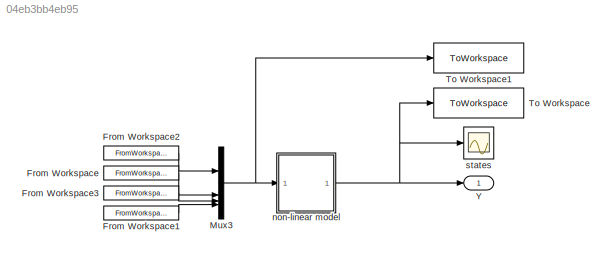
MODEL slx_04eb3bb4eb95
KIND model
CONFIG AbsTol = auto
CONFIG EnableMultiTasking = off
CONFIG FixedStep = Ts
CONFIG InitFcn = sysParam = load("sysParam.mat");\nload('./zz_temp/controlletTypeToUse.mat')\n
CONFIG MaxStep = 0.002
CONFIG MinStep = auto
CONFIG RelTol = 1e-3
CONFIG SampleTimeConstraint = Unconstrained
CONFIG SolverName = VariableStepAuto
CONFIG StartTime = 0.0
CONFIG StopTime = 7
BLOCK [FromWorkspace] From Workspace
  VariableName = sim_RollCMD
BLOCK [FromWorkspace] From Workspace1
  VariableName = sim_YawCMD
BLOCK [FromWorkspace] From Workspace2
  VariableName = sim_ThrustCMD
BLOCK [FromWorkspace] From Workspace3
  VariableName = sim_PitchCMD
BLOCK [Mux] Mux3
  DisplayOption = bar
BLOCK [ToWorkspace] To Workspace
  FixptAsFi = on
  MaxDataPoints = inf
  SampleTime = -1
  SaveFormat = Timeseries
  VariableName = pos
BLOCK [ToWorkspace] To Workspace1
  FixptAsFi = on
  MaxDataPoints = inf
  SampleTime = -1
  SaveFormat = Timeseries
  VariableName = cmd
BLOCK [Outport] Y
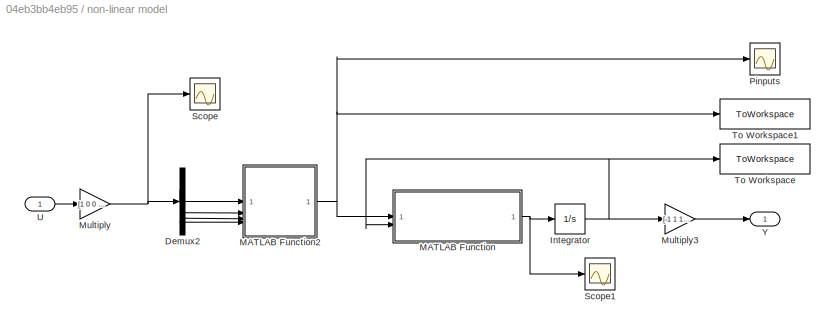
BLOCK [SubSystem] non-linear model
BLOCK [Demux] non-linear model/Demux2
BLOCK [Integrator] non-linear model/Integrator
  InitialCondition = [0;0;0;0;0;0;0;0;0;0;0;0]
  NameLocation = top
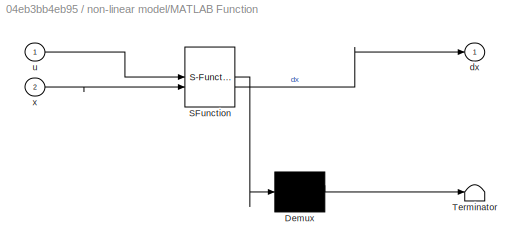
BLOCK [SubSystem] non-linear model/MATLAB Function
  ErrorFcn = Stateflow.Translate.translate
  PermitHierarchicalResolution = ExplicitOnly
  SFBlockType = MATLAB Function
  TreatAsAtomicUnit = on
BLOCK [Demux] non-linear model/MATLAB Function/ Demux 
  Outputs = 1
BLOCK [S-Function] non-linear model/MATLAB Function/ SFunction 
  EnableBusSupport = on
  FunctionName = sf_sfun
  Parameters = sysParam
  PortCounts = [2 2]
  SFcnIsStateOwnerBlock = off
  SFunctionDeploymentMode = off
  Tag = Stateflow S-Function 2
BLOCK [Terminator] non-linear model/MATLAB Function/ Terminator 
BLOCK [Outport] non-linear model/MATLAB Function/dx
BLOCK [Inport] non-linear model/MATLAB Function/u
BLOCK [Inport] non-linear model/MATLAB Function/x
  Port = 2
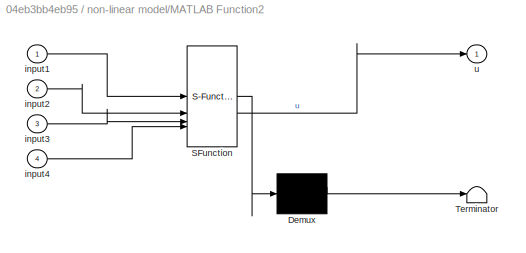
BLOCK [SubSystem] non-linear model/MATLAB Function2
  ErrorFcn = Stateflow.Translate.translate
  PermitHierarchicalResolution = ExplicitOnly
  SFBlockType = MATLAB Function
  TreatAsAtomicUnit = on
BLOCK [Demux] non-linear model/MATLAB Function2/ Demux 
  Outputs = 1
BLOCK [S-Function] non-linear model/MATLAB Function2/ SFunction 
  EnableBusSupport = on
  FunctionName = sf_sfun
  PortCounts = [4 2]
  SFcnIsStateOwnerBlock = off
  SFunctionDeploymentMode = off
  Tag = Stateflow S-Function 4
BLOCK [Terminator] non-linear model/MATLAB Function2/ Terminator 
BLOCK [Inport] non-linear model/MATLAB Function2/input1
BLOCK [Inport] non-linear model/MATLAB Function2/input2
  Port = 2
BLOCK [Inport] non-linear model/MATLAB Function2/input3
  Port = 3
BLOCK [Inport] non-linear model/MATLAB Function2/input4
  Port = 4
BLOCK [Outport] non-linear model/MATLAB Function2/u
BLOCK [Gain] non-linear model/Multiply
  Gain = [1 0 0 0]
BLOCK [Gain] non-linear model/Multiply3
  Gain = [-1 1 1 -1 1 1 180/pi 180/pi 180/pi 180/pi 180/pi 180/pi]'
BLOCK [Scope] non-linear model/Pinputs
  Floating = off
  NumInputPorts = 1
  ScopeSpecificationString = Simulink.scopes.TimeScopeBlockCfg('CurrentConfiguration', extmgr.ConfigurationSet(extmgr.Configuration('Core','General UI',true),extmgr.Configuration('Core','Source UI',true),extmgr.Configuration('Sources','WiredSimulink',true,'DataLoggingVariableName','ScopeData3'),extmgr.Configuration('Visuals','Time Domain',true,'SerializedDisplays',{struct('MinYLimReal','-0.06491','MaxYLimReal','0.48128','YLab...<+1609ch>
BLOCK [Scope] non-linear model/Scope
  Floating = off
  NumInputPorts = 1
  ScopeSpecificationString = Simulink.scopes.TimeScopeBlockCfg('CurrentConfiguration', extmgr.ConfigurationSet(extmgr.Configuration('Core','General UI',true),extmgr.Configuration('Core','Source UI',true),extmgr.Configuration('Sources','WiredSimulink',true,'DataLoggingVariableName','ScopeData1'),extmgr.Configuration('Visuals','Time Domain',true,'SerializedDisplays',{struct('MinYLimReal','-5619.41054','MaxYLimReal','50574.6949'...<+1456ch>
BLOCK [Scope] non-linear model/Scope1
  Floating = off
  NumInputPorts = 1
  ScopeSpecificationString = Simulink.scopes.TimeScopeBlockCfg('CurrentConfiguration', extmgr.ConfigurationSet(extmgr.Configuration('Core','General UI',true),extmgr.Configuration('Core','Source UI',true),extmgr.Configuration('Sources','WiredSimulink',true,'DataLoggingVariableName','ScopeData2'),extmgr.Configuration('Visuals','Time Domain',true,'SerializedDisplays',{struct('MinYLimReal','-0.18668','MaxYLimReal','0.11565','YLab...<+1939ch>
BLOCK [ToWorkspace] non-linear model/To Workspace
  FixptAsFi = on
  MaxDataPoints = inf
  SampleTime = -1
  SaveFormat = Timeseries
  VariableName = stateVec
BLOCK [ToWorkspace] non-linear model/To Workspace1
  FixptAsFi = on
  MaxDataPoints = inf
  SampleTime = -1
  SaveFormat = Timeseries
  VariableName = Forces
BLOCK [Inport] non-linear model/U
  PortDimensions = 4
BLOCK [Outport] non-linear model/Y
BLOCK [Scope] states
  Floating = off
  NumInputPorts = 1
  ScopeSpecificationString = Simulink.scopes.TimeScopeBlockCfg('CurrentConfiguration', extmgr.ConfigurationSet(extmgr.Configuration('Core','General UI',true),extmgr.Configuration('Core','Source UI',true),extmgr.Configuration('Sources','WiredSimulink',true),extmgr.Configuration('Visuals','Time Domain',true,'SerializedDisplays',{struct('MinYLimReal','-1.06962','MaxYLimReal','0.11885','YLabelReal','','MinYLimMag','0.00000','MaxY...<+1935ch>
LINE From Workspace1:1 -> Mux3:4
LINE From Workspace2:1 -> Mux3:1
LINE From Workspace3:1 -> Mux3:3
LINE From Workspace:1 -> Mux3:2
NET Mux3:1 -> To Workspace1:1, non-linear model:1
LINE non-linear model/Demux2:1 -> non-linear model/MATLAB Function2:1
LINE non-linear model/Demux2:2 -> non-linear model/MATLAB Function2:2
LINE non-linear model/Demux2:3 -> non-linear model/MATLAB Function2:3
LINE non-linear model/Demux2:4 -> non-linear model/MATLAB Function2:4
NET non-linear model/Integrator:1 -> non-linear model/MATLAB Function:2, non-linear model/Multiply3:1, non-linear model/To Workspace:1
NET non-linear model/MATLAB Function2:1 -> non-linear model/MATLAB Function:1, non-linear model/Pinputs:1, non-linear model/To Workspace1:1
NET non-linear model/MATLAB Function:1 -> non-linear model/Integrator:1, non-linear model/Scope1:1
LINE non-linear model/Multiply3:1 -> non-linear model/Y:1
NET non-linear model/Multiply:1 -> non-linear model/Demux2:1, non-linear model/Scope:1
LINE non-linear model/U:1 -> non-linear model/Multiply:1
NET non-linear model:1 -> To Workspace:1, Y:1, states:1
note: NET lines group one-source signal fan-out (src -> all destinations, sorted); 1:1 wires keep LINE
CHART non-linear model/MATLAB Function states=1 transitions=1
  STATE_LABEL 'eML_blk_kernel()'
  STATE_LABEL 'SCRIPT:\nfunction dx= nonLinDrone(u,x, sysParam)\n    m = 0.03639;%sysParam.m;\n    I = sysParam.I;\n    g = sysParam.g;\n    invI = sysParam.invI;\n    L = sysParam.L;\n    % L = 0.048;% Distance from center of mass to rotors\n\n    dx = zeros(12,1);\n    \n    % Angle states for easier use\n    phi   = x(7); \n    theta = x(8); \n    psi   = x(9);\n    p     = x(10); \n    q     = x(11); \n    r     = x(12);\n\n  ...<+741ch>'
CHART non-linear model/MATLAB Function2 states=1 transitions=1
  STATE_LABEL 'eML_blk_kernel()'
  STATE_LABEL 'SCRIPT:\nfunction u = fcn(input1,input2,input3,input4)\n\nL = 0.048;% Distance from center of mass to rotors\n% syms Thrust controlRoll controlPitch controlYaw\n% \n% inputs = [Thrust;\n%           controlRoll;\n%           controlPitch;\n%           controlYaw];\n\ncmdi = [1 -0.5  0.5  1;\n        1 -0.5 -0.5 -1;\n        1  0.5 -0.5  1;\n        1  0.5  0.5 -1]*[input1;input2;input3;input4];\n% cmdi = [1 -2  2...<+454ch>'
CHART  states=0 transitions=0
CHART  states=0 transitions=0
